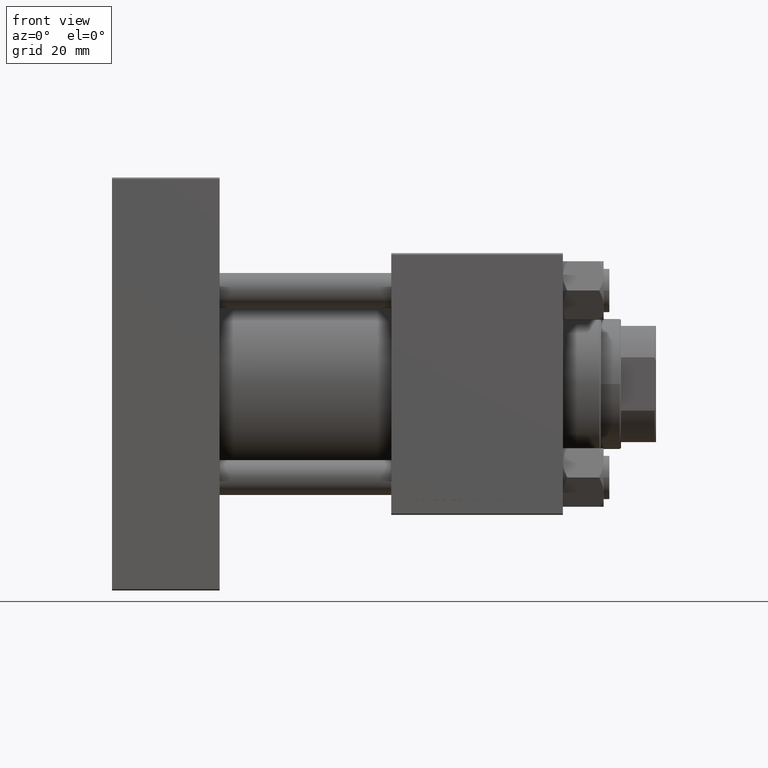
[diagram: clean part render]
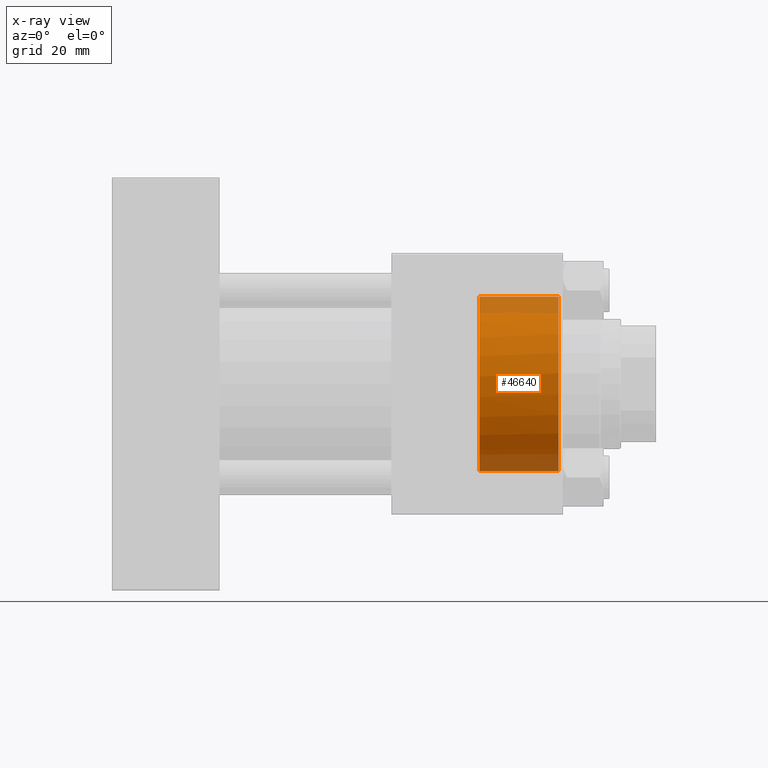
[diagram: x-ray — body ghosted, one internal face saturated and labeled with its STEP entity id]
A machine part, front view, then the same camera in x-ray: the body is ghosted and one INTERNAL B-rep face — a face not visible from any outside direction — is saturated and labeled: STEP entity #46640.
In plain terms, the highlighted cylindrical surface (partial cylindrical patch) has radius 30 mm, axis along (1, 0, 0).
Its self-contained STEP definition (entity closure, byte-faithful):
#269 = DIRECTION ( 'NONE',  ( 1.000000000000000000, -0.000000000000000000, -0.000000000000000000 ) ) ;
#638 = DIRECTION ( 'NONE',  ( 1.000000000000000000, -0.000000000000000000, -0.000000000000000000 ) ) ;
#958 = CARTESIAN_POINT ( 'NONE',  ( 153.5000000000000568, 0.000000000000000000, 0.000000000000000000 ) ) ;
#1438 = DIRECTION ( 'NONE',  ( 1.000000000000000000, 0.000000000000000000, 0.000000000000000000 ) ) ;
#2356 = DIRECTION ( 'NONE',  ( 0.000000000000000000, 0.000000000000000000, -1.000000000000000000 ) ) ;
#2359 = EDGE_CURVE ( 'NONE', #5534, #10399, #35246, .T. ) ;
#3603 = LINE ( 'NONE', #19256, #7835 ) ;
#3801 = CYLINDRICAL_SURFACE ( 'NONE', #22612, 30.00000000000000000 ) ;
#4223 = ORIENTED_EDGE ( 'NONE', *, *, #19971, .T. ) ;
#4692 = CARTESIAN_POINT ( 'NONE',  ( 126.2999999999999972, 0.000000000000000000, 0.000000000000000000 ) ) ;
#5442 = ORIENTED_EDGE ( 'NONE', *, *, #36186, .T. ) ;
#5499 = EDGE_LOOP ( 'NONE', ( #5442, #8335, #4223, #23858, #5647 ) ) ;
#5534 = VERTEX_POINT ( 'NONE', #19711 ) ;
#5647 = ORIENTED_EDGE ( 'NONE', *, *, #17920, .F. ) ;
#7408 = DIRECTION ( 'NONE',  ( 1.000000000000000000, -0.000000000000000000, -0.000000000000000000 ) ) ;
#7473 = CARTESIAN_POINT ( 'NONE',  ( 126.2999999999999972, 0.000000000000000000, -30.00000000000000000 ) ) ;
#7594 = FACE_OUTER_BOUND ( 'NONE', #5499, .T. ) ;
#7835 = VECTOR ( 'NONE', #7408, 1000.000000000000000 ) ;
#8335 = ORIENTED_EDGE ( 'NONE', *, *, #12551, .T. ) ;
#9670 = CARTESIAN_POINT ( 'NONE',  ( 126.4210485436893237, -1.289340916902935064, 29.97924172559973854 ) ) ;
#10399 = VERTEX_POINT ( 'NONE', #33063 ) ;
#12551 = EDGE_CURVE ( 'NONE', #29917, #49480, #3603, .T. ) ;
#12805 = DIRECTION ( 'NONE',  ( 0.000000000000000000, 0.000000000000000000, 1.000000000000000000 ) ) ;
#13206 = CARTESIAN_POINT ( 'NONE',  ( 126.2999999999999972, -1.934011375354403262, 29.93759509379468398 ) ) ;
#14476 = VERTEX_POINT ( 'NONE', #16131 ) ;
#15158 = CARTESIAN_POINT ( 'NONE',  ( 126.2999999999999972, 0.000000000000000000, 0.000000000000000000 ) ) ;
#15551 = DIRECTION ( 'NONE',  ( 1.000000000000000000, 0.000000000000000000, 0.000000000000000000 ) ) ;
#16131 = CARTESIAN_POINT ( 'NONE',  ( 126.2999999999999972, -1.934011375354403262, 29.93759509379468398 ) ) ;
#17920 = EDGE_CURVE ( 'NONE', #14476, #5534, #29003, .T. ) ;
#19256 = CARTESIAN_POINT ( 'NONE',  ( 126.2999999999999972, 3.673940397442059178E-15, 30.00000000000000000 ) ) ;
#19711 = CARTESIAN_POINT ( 'NONE',  ( 126.2999999999999972, 0.000000000000000000, -30.00000000000000000 ) ) ;
#19971 = EDGE_CURVE ( 'NONE', #49480, #10399, #45139, .T. ) ;
#20086 = DIRECTION ( 'NONE',  ( 0.000000000000000000, 0.000000000000000000, -1.000000000000000000 ) ) ;
#20183 = AXIS2_PLACEMENT_3D ( 'NONE', #958, #1438, #12805 ) ;
#22612 = AXIS2_PLACEMENT_3D ( 'NONE', #15158, #269, #2356 ) ;
#23858 = ORIENTED_EDGE ( 'NONE', *, *, #2359, .F. ) ;
#25102 = CARTESIAN_POINT ( 'NONE',  ( 126.4800000000000040, -0.6446704584514656444, 30.00000000000000000 ) ) ;
#26061 = B_SPLINE_CURVE_WITH_KNOTS ( 'NONE', 3,
 ( #13206, #9670, #25102, #44278 ),
 .UNSPECIFIED., .F., .F.,
 ( 4, 4 ),
 ( 6.505213034913026604E-19, 0.001934011375354407081 ),
 .UNSPECIFIED. ) ;
#29003 = CIRCLE ( 'NONE', #42689, 30.00000000000000000 ) ;
#29277 = CARTESIAN_POINT ( 'NONE',  ( 153.5000000000000568, 3.673940397442059178E-15, 30.00000000000000000 ) ) ;
#29917 = VERTEX_POINT ( 'NONE', #31782 ) ;
#31782 = CARTESIAN_POINT ( 'NONE',  ( 126.4800000000000040, 3.352779466116923030E-15, 30.00000000000000000 ) ) ;
#33063 = CARTESIAN_POINT ( 'NONE',  ( 153.5000000000000568, 0.000000000000000000, -30.00000000000000000 ) ) ;
#35246 = LINE ( 'NONE', #7473, #41484 ) ;
#36186 = EDGE_CURVE ( 'NONE', #14476, #29917, #26061, .T. ) ;
#41484 = VECTOR ( 'NONE', #638, 1000.000000000000000 ) ;
#42689 = AXIS2_PLACEMENT_3D ( 'NONE', #4692, #15551, #20086 ) ;
#44278 = CARTESIAN_POINT ( 'NONE',  ( 126.4800000000000040, 3.352779466116923030E-15, 30.00000000000000000 ) ) ;
#45139 = CIRCLE ( 'NONE', #20183, 30.00000000000000000 ) ;
#46640 = ADVANCED_FACE ( 'NONE', ( #7594 ), #3801, .F. ) ;
#49480 = VERTEX_POINT ( 'NONE', #29277 ) ;